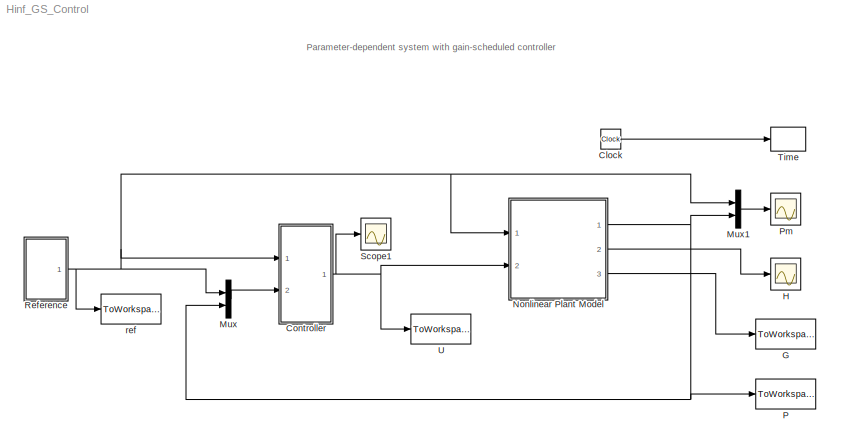
MODEL Hinf_GS_Control
KIND model
BLOCK [Clock] Clock
  Decimation = 1
  SID = 65
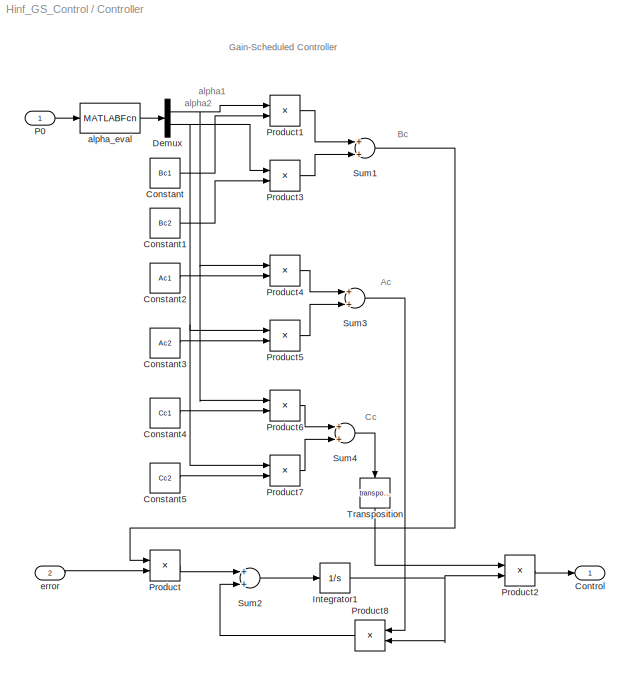
BLOCK [SubSystem] Controller
  FunctionWithSeparateData = off
  MaskHideContents = off
  MinAlgLoopOccurrences = off
  Opaque = off
  Ports = [2, 1]
  PropExecContextOutsideSubsystem = off
  RTWSystemCode = Auto
  RequestExecContextInheritance = off
  SID = 20
BLOCK [Constant] Controller/Constant
  SID = 23
  Value = Bc1
BLOCK [Constant] Controller/Constant1
  SID = 24
  Value = Bc2
BLOCK [Constant] Controller/Constant2
  SID = 25
  Value = Ac1
BLOCK [Constant] Controller/Constant3
  SID = 26
  Value = Ac2
BLOCK [Constant] Controller/Constant4
  SID = 27
  Value = Cc1
BLOCK [Constant] Controller/Constant5
  SID = 28
  Value = Cc2
BLOCK [Outport] Controller/Control
  IconDisplay = Port number
  SID = 46
BLOCK [Demux] Controller/Demux
  DisplayOption = bar
  Outputs = 2
  Ports = [1, 2]
  SID = 29
BLOCK [Integrator] Controller/Integrator1
  Ports = [1, 1]
  SID = 31
BLOCK [Inport] Controller/P0
  IconDisplay = Port number
  SID = 21
BLOCK [Product] Controller/Product
  InputSameDT = off
  Multiplication = Matrix(*)
  OutDataTypeStr = Inherit: Inherit via internal rule
  Ports = [2, 1]
  SID = 33
  SaturateOnIntegerOverflow = off
BLOCK [Product] Controller/Product1
  InputSameDT = off
  OutDataTypeStr = Inherit: Inherit via internal rule
  Ports = [2, 1]
  SID = 34
  SaturateOnIntegerOverflow = off
BLOCK [Product] Controller/Product2
  InputSameDT = off
  Multiplication = Matrix(*)
  OutDataTypeStr = Inherit: Inherit via internal rule
  Ports = [2, 1]
  SID = 35
  SaturateOnIntegerOverflow = off
BLOCK [Product] Controller/Product3
  InputSameDT = off
  OutDataTypeStr = Inherit: Inherit via internal rule
  Ports = [2, 1]
  SID = 36
  SaturateOnIntegerOverflow = off
BLOCK [Product] Controller/Product4
  InputSameDT = off
  OutDataTypeStr = Inherit: Inherit via internal rule
  Ports = [2, 1]
  SID = 37
  SaturateOnIntegerOverflow = off
BLOCK [Product] Controller/Product5
  InputSameDT = off
  OutDataTypeStr = Inherit: Inherit via internal rule
  Ports = [2, 1]
  SID = 38
  SaturateOnIntegerOverflow = off
BLOCK [Product] Controller/Product6
  InputSameDT = off
  OutDataTypeStr = Inherit: Inherit via internal rule
  Ports = [2, 1]
  SID = 39
  SaturateOnIntegerOverflow = off
BLOCK [Product] Controller/Product7
  InputSameDT = off
  OutDataTypeStr = Inherit: Inherit via internal rule
  Ports = [2, 1]
  SID = 40
  SaturateOnIntegerOverflow = off
BLOCK [Product] Controller/Product8
  InputSameDT = off
  Multiplication = Matrix(*)
  OutDataTypeStr = Inherit: Inherit via internal rule
  Ports = [2, 1]
  SID = 41
  SaturateOnIntegerOverflow = off
BLOCK [Sum] Controller/Sum1
  InputSameDT = off
  OutDataTypeStr = Inherit: Inherit via internal rule
  Ports = [2, 1]
  SID = 42
  SaturateOnIntegerOverflow = off
BLOCK [Sum] Controller/Sum2
  InputSameDT = off
  OutDataTypeStr = Inherit: Inherit via internal rule
  Ports = [2, 1]
  SID = 43
  SaturateOnIntegerOverflow = off
BLOCK [Sum] Controller/Sum3
  InputSameDT = off
  OutDataTypeStr = Inherit: Inherit via internal rule
  Ports = [2, 1]
  SID = 44
  SaturateOnIntegerOverflow = off
BLOCK [Sum] Controller/Sum4
  InputSameDT = off
  OutDataTypeStr = Inherit: Inherit via internal rule
  Ports = [2, 1]
  SID = 45
  SaturateOnIntegerOverflow = off
BLOCK [Math] Controller/Transposition
  Operator = transpose
  Ports = [1, 1]
  SID = 32
BLOCK [MATLABFcn] Controller/alpha_eval
  MATLABFcn = alpha_eval
  Output1D = off
  OutputDimensions = 2
  Ports = [1, 1]
  SID = 30
BLOCK [Inport] Controller/error
  IconDisplay = Port number
  Port = 2
  SID = 22
BLOCK [ToWorkspace] G
  MaxDataPoints = inf
  Ports = [1]
  SID = 59
  SampleTime = -1
  SaveFormat = Structure With Time
  VariableName = G_hinf
BLOCK [Scope] H
  DataFormat = StructureWithTime
  Floating = off
  LimitDataPoints = off
  NumInputPorts = 1
  Ports = [1]
  SID = 73
  SampleTime = 0
  SaveName = ScopeData3
  YMax = 0.79738
  YMin = 0.7973
  ZoomMode = yonly
BLOCK [Mux] Mux
  DisplayOption = bar
  Inputs = 2
  Ports = [2, 1]
  SID = 62
BLOCK [Mux] Mux1
  DisplayOption = bar
  Inputs = 2
  Ports = [2, 1]
  SID = 75
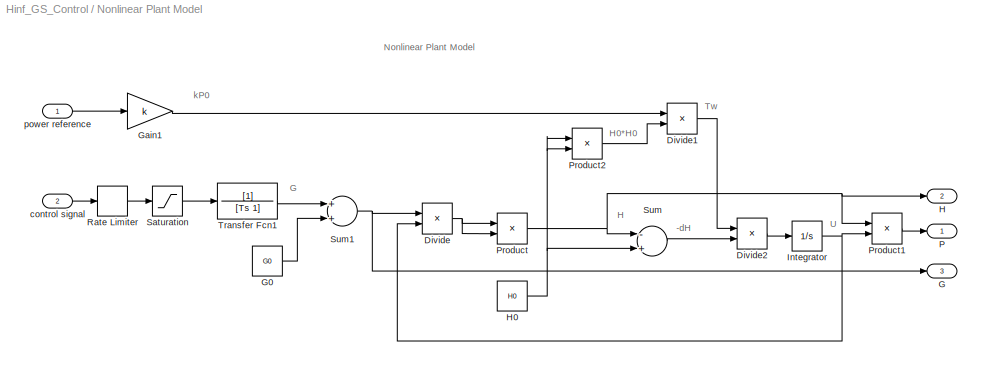
BLOCK [SubSystem] Nonlinear Plant Model
  FunctionWithSeparateData = off
  MaskHideContents = off
  MinAlgLoopOccurrences = off
  Opaque = off
  Ports = [2, 3]
  PropExecContextOutsideSubsystem = off
  RTWSystemCode = Auto
  RequestExecContextInheritance = off
  SID = 1
BLOCK [Product] Nonlinear Plant Model/Divide
  InputSameDT = off
  Inputs = /*
  OutDataTypeStr = Inherit: Inherit via internal rule
  Ports = [2, 1]
  RndMeth = Floor
  SID = 3
  SaturateOnIntegerOverflow = off
BLOCK [Product] Nonlinear Plant Model/Divide1
  InputSameDT = off
  Inputs = */
  OutDataTypeStr = Inherit: Inherit via internal rule
  Ports = [2, 1]
  RndMeth = Floor
  SID = 70
  SaturateOnIntegerOverflow = off
BLOCK [Product] Nonlinear Plant Model/Divide2
  InputSameDT = off
  Inputs = /*
  OutDataTypeStr = Inherit: Inherit via internal rule
  Ports = [2, 1]
  RndMeth = Floor
  SID = 71
  SaturateOnIntegerOverflow = off
BLOCK [Outport] Nonlinear Plant Model/G
  IconDisplay = Port number
  Port = 3
  SID = 17
BLOCK [Constant] Nonlinear Plant Model/G0
  SID = 76
  Value = G0
BLOCK [Gain] Nonlinear Plant Model/Gain1
  Gain = k
  OutDataTypeStr = Inherit: Inherit via internal rule
  ParamDataTypeStr = Inherit: Inherit via internal rule
  SID = 68
  SaturateOnIntegerOverflow = off
BLOCK [Outport] Nonlinear Plant Model/H
  IconDisplay = Port number
  Port = 2
  SID = 16
BLOCK [Constant] Nonlinear Plant Model/H0
  SID = 5
  Value = H0
BLOCK [Integrator] Nonlinear Plant Model/Integrator
  InitialCondition = 1*0
  Ports = [1, 1]
  SID = 7
BLOCK [Outport] Nonlinear Plant Model/P
  IconDisplay = Port number
  SID = 15
BLOCK [Product] Nonlinear Plant Model/Product
  InputSameDT = off
  OutDataTypeStr = Inherit: Inherit via internal rule
  Ports = [2, 1]
  SID = 8
  SaturateOnIntegerOverflow = off
BLOCK [Product] Nonlinear Plant Model/Product1
  InputSameDT = off
  OutDataTypeStr = Inherit: Inherit via internal rule
  Ports = [2, 1]
  SID = 9
  SaturateOnIntegerOverflow = off
BLOCK [Product] Nonlinear Plant Model/Product2
  InputSameDT = off
  OutDataTypeStr = Inherit: Inherit via internal rule
  Ports = [2, 1]
  SID = 69
  SaturateOnIntegerOverflow = off
BLOCK [RateLimiter] Nonlinear Plant Model/Rate Limiter
  FallingSlewLimit = -1/15
  RisingSlewLimit = 1/15
  SID = 10
  SampleTimeMode = inherited
BLOCK [Saturate] Nonlinear Plant Model/Saturation
  InputPortMap = u0
  LowerLimit = 0
  Ports = [1, 1]
  SID = 11
  UpperLimit = 1
BLOCK [Sum] Nonlinear Plant Model/Sum
  InputSameDT = off
  Inputs = -+
  OutDataTypeStr = Inherit: Inherit via internal rule
  Ports = [2, 1]
  SID = 12
  SaturateOnIntegerOverflow = off
BLOCK [Sum] Nonlinear Plant Model/Sum1
  InputSameDT = off
  OutDataTypeStr = Inherit: Inherit via internal rule
  Ports = [2, 1]
  SID = 77
  SaturateOnIntegerOverflow = off
BLOCK [TransferFcn] Nonlinear Plant Model/Transfer Fcn1
  Denominator = [Ts 1]
  SID = 14
BLOCK [Inport] Nonlinear Plant Model/control signal
  IconDisplay = Port number
  Port = 2
  SID = 2
BLOCK [Inport] Nonlinear Plant Model/power reference
  IconDisplay = Port number
  SID = 67
BLOCK [ToWorkspace] P
  MaxDataPoints = inf
  Ports = [1]
  SID = 58
  SampleTime = -1
  SaveFormat = Structure With Time
  VariableName = P_hinf
BLOCK [Scope] Pm
  DataFormat = StructureWithTime
  Floating = off
  LimitDataPoints = off
  NumInputPorts = 1
  Ports = [1]
  SID = 18
  SampleTime = 0
  YMax = 0.79738
  YMin = 0.7973
  ZoomMode = yonly
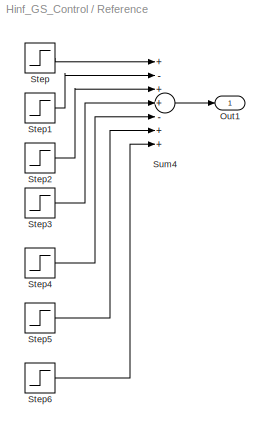
BLOCK [SubSystem] Reference
  FunctionWithSeparateData = off
  MaskHideContents = off
  MinAlgLoopOccurrences = off
  Opaque = off
  Ports = [0, 1]
  PropExecContextOutsideSubsystem = off
  RTWSystemCode = Auto
  RequestExecContextInheritance = off
  SID = 47
BLOCK [Outport] Reference/Out1
  IconDisplay = Port number
  SID = 56
BLOCK [Step] Reference/Step
  After = 0.8
  SID = 48
  SampleTime = 0
  Time = 0
BLOCK [Step] Reference/Step1
  After = 0.3
  SID = 49
  SampleTime = 0
  Time = 60
BLOCK [Step] Reference/Step2
  After = -0.2
  SID = 50
  SampleTime = 0
  Time = 120
BLOCK [Step] Reference/Step3
  After = 0.6
  SID = 51
  SampleTime = 0
  Time = 180
BLOCK [Step] Reference/Step4
  After = 0.2
  SID = 52
  SampleTime = 0
  Time = 240
BLOCK [Step] Reference/Step5
  After = -0.3
  SID = 53
  SampleTime = 0
  Time = 300
BLOCK [Step] Reference/Step6
  After = 0.4
  SID = 54
  SampleTime = 0
  Time = 360
BLOCK [Sum] Reference/Sum4
  InputSameDT = off
  Inputs = +-++-++
  OutDataTypeStr = Inherit: Inherit via internal rule
  Ports = [7, 1]
  SID = 55
  SaturateOnIntegerOverflow = off
BLOCK [Scope] Scope1
  DataFormat = StructureWithTime
  Floating = off
  LimitDataPoints = off
  NumInputPorts = 1
  Ports = [1]
  SID = 19
  SampleTime = 0
  SaveName = ScopeData1
  YMax = 0.179
  YMin = 0.163
BLOCK [ToWorkspace] Time
  MaxDataPoints = inf
  Ports = [1]
  SID = 66
  SampleTime = -1
  SaveFormat = Array
  VariableName = t
BLOCK [ToWorkspace] U
  MaxDataPoints = inf
  Ports = [1]
  SID = 60
  SampleTime = -1
  SaveFormat = Structure With Time
  VariableName = U_hinf
BLOCK [ToWorkspace] ref
  MaxDataPoints = inf
  Ports = [1]
  SID = 64
  SampleTime = -1
  SaveFormat = Structure With Time
  VariableName = ref
ANNOTATION (root): Parameter-dependent system with gain-scheduled controller
ANNOTATION Controller: Ac
ANNOTATION Controller: Bc
ANNOTATION Controller: Cc
ANNOTATION Controller: Gain-Scheduled Controller
ANNOTATION Controller: alpha1
ANNOTATION Controller: alpha2
ANNOTATION Nonlinear Plant Model: -dH
ANNOTATION Nonlinear Plant Model: G
ANNOTATION Nonlinear Plant Model: H
ANNOTATION Nonlinear Plant Model: H0*H0
ANNOTATION Nonlinear Plant Model: Nonlinear Plant Model
ANNOTATION Nonlinear Plant Model: Tw
ANNOTATION Nonlinear Plant Model: U
ANNOTATION Nonlinear Plant Model: kP0
LINE Clock:1 -> Time:1
LINE Controller/Constant1:1 -> Controller/Product3:2
LINE Controller/Constant2:1 -> Controller/Product4:2
LINE Controller/Constant3:1 -> Controller/Product5:2
LINE Controller/Constant4:1 -> Controller/Product6:2
LINE Controller/Constant5:1 -> Controller/Product7:2
LINE Controller/Constant:1 -> Controller/Product1:2
NET Controller/Demux:1 -> Controller/Product1:1, Controller/Product4:1, Controller/Product6:1
NET Controller/Demux:2 -> Controller/Product3:1, Controller/Product5:1, Controller/Product7:1
NET Controller/Integrator1:1 -> Controller/Product2:2, Controller/Product8:2
LINE Controller/P0:1 -> Controller/alpha_eval:1
LINE Controller/Product1:1 -> Controller/Sum1:1
LINE Controller/Product2:1 -> Controller/Control:1
LINE Controller/Product3:1 -> Controller/Sum1:2
LINE Controller/Product4:1 -> Controller/Sum3:1
LINE Controller/Product5:1 -> Controller/Sum3:2
LINE Controller/Product6:1 -> Controller/Sum4:1
LINE Controller/Product7:1 -> Controller/Sum4:2
LINE Controller/Product8:1 -> Controller/Sum2:2
LINE Controller/Product:1 -> Controller/Sum2:1
LINE Controller/Sum1:1 -> Controller/Product:1
LINE Controller/Sum2:1 -> Controller/Integrator1:1
LINE Controller/Sum3:1 -> Controller/Product8:1
LINE Controller/Sum4:1 -> Controller/Transposition:1
LINE Controller/Transposition:1 -> Controller/Product2:1
LINE Controller/alpha_eval:1 -> Controller/Demux:1
LINE Controller/error:1 -> Controller/Product:2
NET Controller:1 -> Nonlinear Plant Model:2, Scope1:1, U:1
LINE Mux1:1 -> Pm:1
LINE Mux:1 -> Controller:2
LINE Nonlinear Plant Model/Divide1:1 -> Nonlinear Plant Model/Divide2:1
LINE Nonlinear Plant Model/Divide2:1 -> Nonlinear Plant Model/Integrator:1
NET Nonlinear Plant Model/Divide:1 -> Nonlinear Plant Model/Product:1, Nonlinear Plant Model/Product:2
LINE Nonlinear Plant Model/G0:1 -> Nonlinear Plant Model/Sum1:2
LINE Nonlinear Plant Model/Gain1:1 -> Nonlinear Plant Model/Divide1:1
NET Nonlinear Plant Model/H0:1 -> Nonlinear Plant Model/Product2:1, Nonlinear Plant Model/Product2:2, Nonlinear Plant Model/Sum:2
NET Nonlinear Plant Model/Integrator:1 -> Nonlinear Plant Model/Divide:2, Nonlinear Plant Model/Product1:2
LINE Nonlinear Plant Model/Product1:1 -> Nonlinear Plant Model/P:1
LINE Nonlinear Plant Model/Product2:1 -> Nonlinear Plant Model/Divide1:2
NET Nonlinear Plant Model/Product:1 -> Nonlinear Plant Model/H:1, Nonlinear Plant Model/Product1:1, Nonlinear Plant Model/Sum:1
LINE Nonlinear Plant Model/Rate Limiter:1 -> Nonlinear Plant Model/Saturation:1
LINE Nonlinear Plant Model/Saturation:1 -> Nonlinear Plant Model/Transfer Fcn1:1
NET Nonlinear Plant Model/Sum1:1 -> Nonlinear Plant Model/Divide:1, Nonlinear Plant Model/G:1
LINE Nonlinear Plant Model/Sum:1 -> Nonlinear Plant Model/Divide2:2
LINE Nonlinear Plant Model/Transfer Fcn1:1 -> Nonlinear Plant Model/Sum1:1
LINE Nonlinear Plant Model/control signal:1 -> Nonlinear Plant Model/Rate Limiter:1
LINE Nonlinear Plant Model/power reference:1 -> Nonlinear Plant Model/Gain1:1
NET Nonlinear Plant Model:1 -> Mux1:2, Mux:2, P:1
LINE Nonlinear Plant Model:2 -> H:1
LINE Nonlinear Plant Model:3 -> G:1
LINE Reference/Step1:1 -> Reference/Sum4:2
LINE Reference/Step2:1 -> Reference/Sum4:3
LINE Reference/Step3:1 -> Reference/Sum4:4
LINE Reference/Step4:1 -> Reference/Sum4:5
LINE Reference/Step5:1 -> Reference/Sum4:6
LINE Reference/Step6:1 -> Reference/Sum4:7
LINE Reference/Step:1 -> Reference/Sum4:1
LINE Reference/Sum4:1 -> Reference/Out1:1
NET Reference:1 -> Controller:1, Mux1:1, Mux:1, Nonlinear Plant Model:1, ref:1
note: NET lines group one-source signal fan-out (src -> all destinations, sorted); 1:1 wires keep LINE
